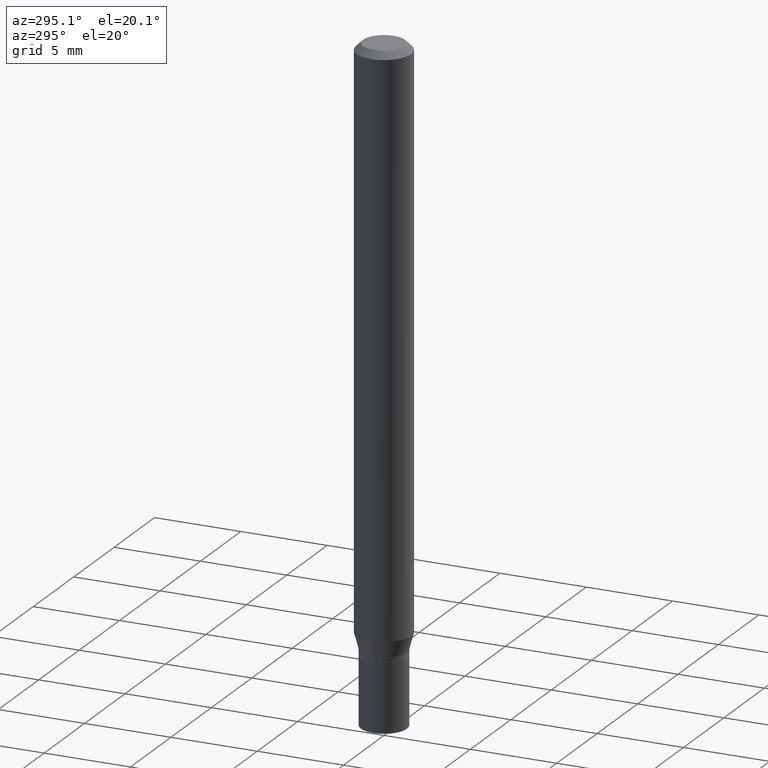
[diagram: clean part render]
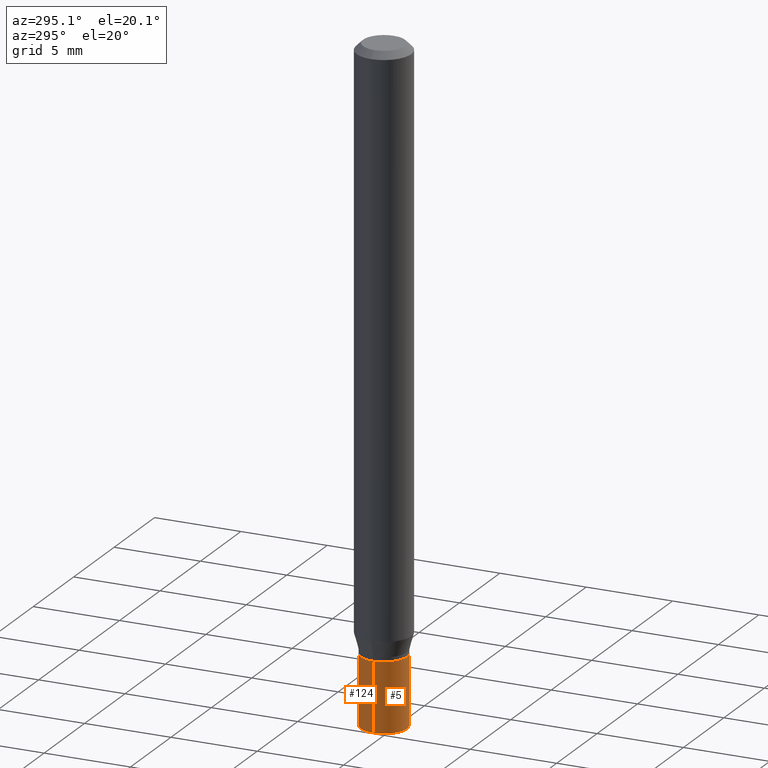
[diagram: same view with one multi-face feature highlighted, each face labeled with its STEP entity id]
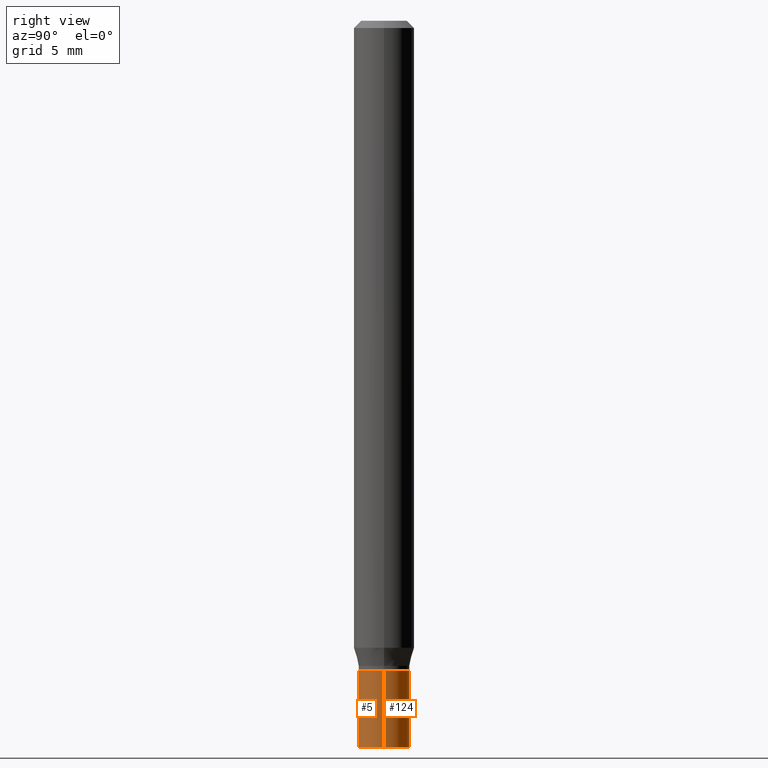
[diagram: same view with one multi-face feature highlighted, each face labeled with its STEP entity id]
A machine part, auxiliary view. The highlighted faces form ONE feature: a constant-radius fillet chain: 2 tangent blend faces with common blend radius 1.3335 mm. The faces share edges in the B-rep.
A second angle (right view) of the same feature is appended — it is thin or edge-on in the first view.
Their STEP definitions:
[1] entity #124 (Cylinder):
#41 = CARTESIAN_POINT ( 'NONE',  ( 0.05249999999999999806, -5.603827548843247337E-15, -1.500000000000000222 ) ) ;
#72 = VERTEX_POINT ( 'NONE', #267 ) ;
#73 = CIRCLE ( 'NONE', #328, 0.05249999999999999806 ) ;
#99 = FACE_OUTER_BOUND ( 'NONE', #434, .T. ) ;
#124 = ADVANCED_FACE ( 'NONE', ( #99 ), #139, .T. ) ;
#136 = CARTESIAN_POINT ( 'NONE',  ( -0.05249999999999999806, 3.730349362740525838E-16, -2.582440922383825311E-30 ) ) ;
#139 = CYLINDRICAL_SURFACE ( 'NONE', #244, 0.05249999999999999806 ) ;
#145 = DIRECTION ( 'NONE',  ( 1.000000000000000000, -6.982962677686268288E-15, 0.000000000000000000 ) ) ;
#170 = EDGE_CURVE ( 'NONE', #223, #291, #73, .T. ) ;
#172 = CARTESIAN_POINT ( 'NONE',  ( 3.281819137900453057E-29, -4.685567956727500961E-15, -1.342000000000000082 ) ) ;
#177 = VECTOR ( 'NONE', #444, 39.37007874015748143 ) ;
#186 = CARTESIAN_POINT ( 'NONE',  ( -0.05249999999999999806, -4.588360046222057034E-15, -1.342000000000000082 ) ) ;
#217 = VERTEX_POINT ( 'NONE', #186 ) ;
#219 = ORIENTED_EDGE ( 'NONE', *, *, #170, .T. ) ;
#223 = VERTEX_POINT ( 'NONE', #41 ) ;
#231 = VECTOR ( 'NONE', #376, 39.37007874015748143 ) ;
#237 = DIRECTION ( 'NONE',  ( -2.445468806185136597E-29, 3.491481338843145583E-15, 1.000000000000000000 ) ) ;
#240 = LINE ( 'NONE', #136, #231 ) ;
#244 = AXIS2_PLACEMENT_3D ( 'NONE', #456, #237, #362 ) ;
#246 = CARTESIAN_POINT ( 'NONE',  ( 0.05249999999999999806, -3.666055405785289629E-16, 2.559992807292866011E-30 ) ) ;
#267 = CARTESIAN_POINT ( 'NONE',  ( 0.05249999999999999806, -5.052173497306030121E-15, -1.342000000000000082 ) ) ;
#269 = ORIENTED_EDGE ( 'NONE', *, *, #394, .F. ) ;
#273 = LINE ( 'NONE', #246, #177 ) ;
#290 = CIRCLE ( 'NONE', #446, 0.05249999999999999806 ) ;
#291 = VERTEX_POINT ( 'NONE', #453 ) ;
#292 = EDGE_CURVE ( 'NONE', #72, #217, #290, .T. ) ;
#317 = CARTESIAN_POINT ( 'NONE',  ( 3.668203209277704895E-29, -5.237222008264718177E-15, -1.500000000000000222 ) ) ;
#328 = AXIS2_PLACEMENT_3D ( 'NONE', #317, #392, #145 ) ;
#337 = DIRECTION ( 'NONE',  ( 1.000000000000000000, -6.982962677686268288E-15, 0.000000000000000000 ) ) ;
#362 = DIRECTION ( 'NONE',  ( 1.000000000000000000, -6.982962677686265922E-15, 4.876176775795935232E-29 ) ) ;
#376 = DIRECTION ( 'NONE',  ( -2.445468806185136877E-29, 3.491481338843145188E-15, 1.000000000000000000 ) ) ;
#392 = DIRECTION ( 'NONE',  ( -2.445468806185136597E-29, 3.491481338843145583E-15, 1.000000000000000000 ) ) ;
#394 = EDGE_CURVE ( 'NONE', #223, #72, #273, .T. ) ;
#401 = ORIENTED_EDGE ( 'NONE', *, *, #292, .F. ) ;
#410 = ORIENTED_EDGE ( 'NONE', *, *, #417, .T. ) ;
#417 = EDGE_CURVE ( 'NONE', #291, #217, #240, .T. ) ;
#421 = DIRECTION ( 'NONE',  ( -2.445468806185136597E-29, 3.491481338843145583E-15, 1.000000000000000000 ) ) ;
#434 = EDGE_LOOP ( 'NONE', ( #219, #410, #401, #269 ) ) ;
#444 = DIRECTION ( 'NONE',  ( -2.445468806185136877E-29, 3.491481338843145188E-15, 1.000000000000000000 ) ) ;
#446 = AXIS2_PLACEMENT_3D ( 'NONE', #172, #421, #337 ) ;
#453 = CARTESIAN_POINT ( 'NONE',  ( -0.05249999999999999806, -4.588360046222057034E-15, -1.500000000000000222 ) ) ;
#456 = CARTESIAN_POINT ( 'NONE',  ( 0.000000000000000000, 0.000000000000000000, 0.000000000000000000 ) ) ;
[2] entity #5 (Cylinder):
#5 = ADVANCED_FACE ( 'NONE', ( #97 ), #141, .T. ) ;
#35 = CIRCLE ( 'NONE', #222, 0.05249999999999999806 ) ;
#41 = CARTESIAN_POINT ( 'NONE',  ( 0.05249999999999999806, -5.603827548843247337E-15, -1.500000000000000222 ) ) ;
#47 = CIRCLE ( 'NONE', #423, 0.05249999999999999806 ) ;
#51 = CARTESIAN_POINT ( 'NONE',  ( 3.281819137900453057E-29, -4.685567956727500961E-15, -1.342000000000000082 ) ) ;
#56 = DIRECTION ( 'NONE',  ( 1.000000000000000000, -6.982962677686265922E-15, 4.876176775795935232E-29 ) ) ;
#72 = VERTEX_POINT ( 'NONE', #267 ) ;
#82 = DIRECTION ( 'NONE',  ( -2.445468806185136597E-29, 3.491481338843145583E-15, 1.000000000000000000 ) ) ;
#97 = FACE_OUTER_BOUND ( 'NONE', #321, .T. ) ;
#107 = EDGE_CURVE ( 'NONE', #291, #223, #47, .T. ) ;
#136 = CARTESIAN_POINT ( 'NONE',  ( -0.05249999999999999806, 3.730349362740525838E-16, -2.582440922383825311E-30 ) ) ;
#141 = CYLINDRICAL_SURFACE ( 'NONE', #285, 0.05249999999999999806 ) ;
#158 = DIRECTION ( 'NONE',  ( 1.000000000000000000, -6.982962677686268288E-15, 0.000000000000000000 ) ) ;
#167 = EDGE_CURVE ( 'NONE', #217, #72, #35, .T. ) ;
#177 = VECTOR ( 'NONE', #444, 39.37007874015748143 ) ;
#186 = CARTESIAN_POINT ( 'NONE',  ( -0.05249999999999999806, -4.588360046222057034E-15, -1.342000000000000082 ) ) ;
#211 = CARTESIAN_POINT ( 'NONE',  ( 3.668203209277704895E-29, -5.237222008264718177E-15, -1.500000000000000222 ) ) ;
#214 = ORIENTED_EDGE ( 'NONE', *, *, #394, .T. ) ;
#217 = VERTEX_POINT ( 'NONE', #186 ) ;
#222 = AXIS2_PLACEMENT_3D ( 'NONE', #51, #82, #158 ) ;
#223 = VERTEX_POINT ( 'NONE', #41 ) ;
#231 = VECTOR ( 'NONE', #376, 39.37007874015748143 ) ;
#240 = LINE ( 'NONE', #136, #231 ) ;
#246 = CARTESIAN_POINT ( 'NONE',  ( 0.05249999999999999806, -3.666055405785289629E-16, 2.559992807292866011E-30 ) ) ;
#255 = CARTESIAN_POINT ( 'NONE',  ( 0.000000000000000000, 0.000000000000000000, 0.000000000000000000 ) ) ;
#267 = CARTESIAN_POINT ( 'NONE',  ( 0.05249999999999999806, -5.052173497306030121E-15, -1.342000000000000082 ) ) ;
#273 = LINE ( 'NONE', #246, #177 ) ;
#285 = AXIS2_PLACEMENT_3D ( 'NONE', #255, #393, #56 ) ;
#291 = VERTEX_POINT ( 'NONE', #453 ) ;
#321 = EDGE_LOOP ( 'NONE', ( #457, #402, #214, #353 ) ) ;
#353 = ORIENTED_EDGE ( 'NONE', *, *, #167, .F. ) ;
#376 = DIRECTION ( 'NONE',  ( -2.445468806185136877E-29, 3.491481338843145188E-15, 1.000000000000000000 ) ) ;
#383 = DIRECTION ( 'NONE',  ( 1.000000000000000000, -6.982962677686268288E-15, 0.000000000000000000 ) ) ;
#393 = DIRECTION ( 'NONE',  ( -2.445468806185136597E-29, 3.491481338843145583E-15, 1.000000000000000000 ) ) ;
#394 = EDGE_CURVE ( 'NONE', #223, #72, #273, .T. ) ;
#402 = ORIENTED_EDGE ( 'NONE', *, *, #107, .T. ) ;
#417 = EDGE_CURVE ( 'NONE', #291, #217, #240, .T. ) ;
#423 = AXIS2_PLACEMENT_3D ( 'NONE', #211, #427, #383 ) ;
#427 = DIRECTION ( 'NONE',  ( -2.445468806185136597E-29, 3.491481338843145583E-15, 1.000000000000000000 ) ) ;
#444 = DIRECTION ( 'NONE',  ( -2.445468806185136877E-29, 3.491481338843145188E-15, 1.000000000000000000 ) ) ;
#453 = CARTESIAN_POINT ( 'NONE',  ( -0.05249999999999999806, -4.588360046222057034E-15, -1.500000000000000222 ) ) ;
#457 = ORIENTED_EDGE ( 'NONE', *, *, #417, .F. ) ;